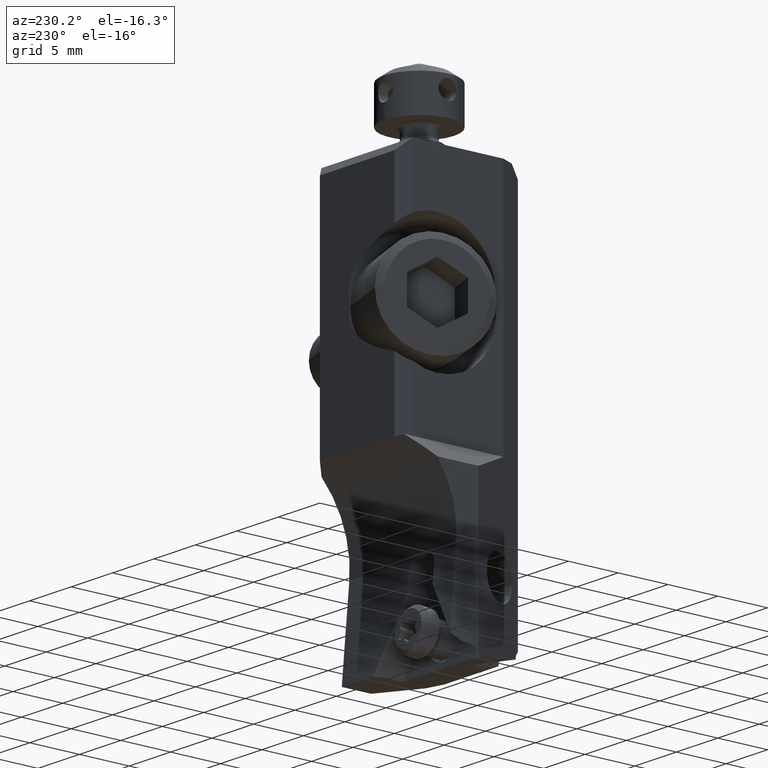
[diagram: clean part render]
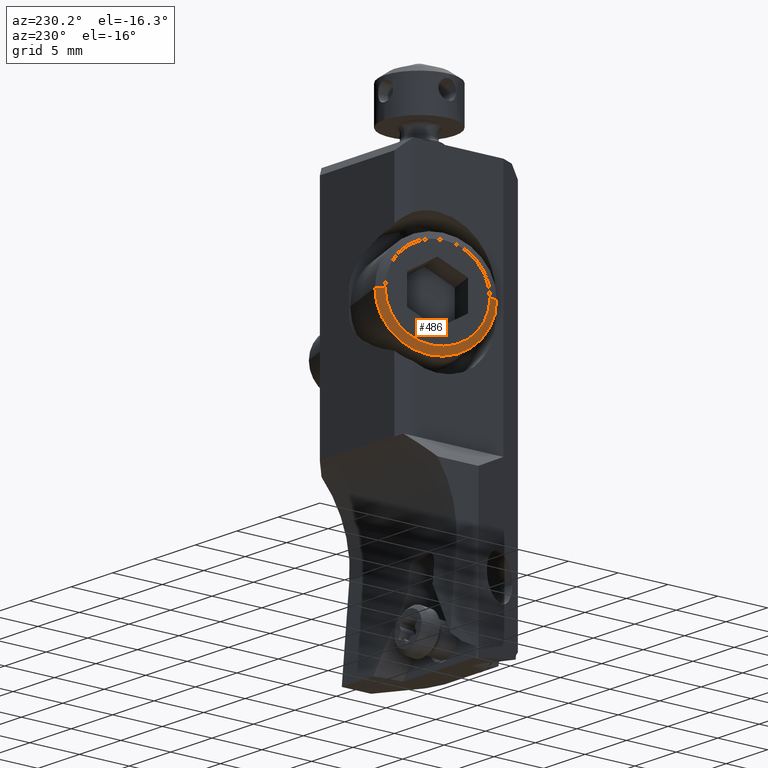
[diagram: same view with one face highlighted and labeled with its STEP entity id]
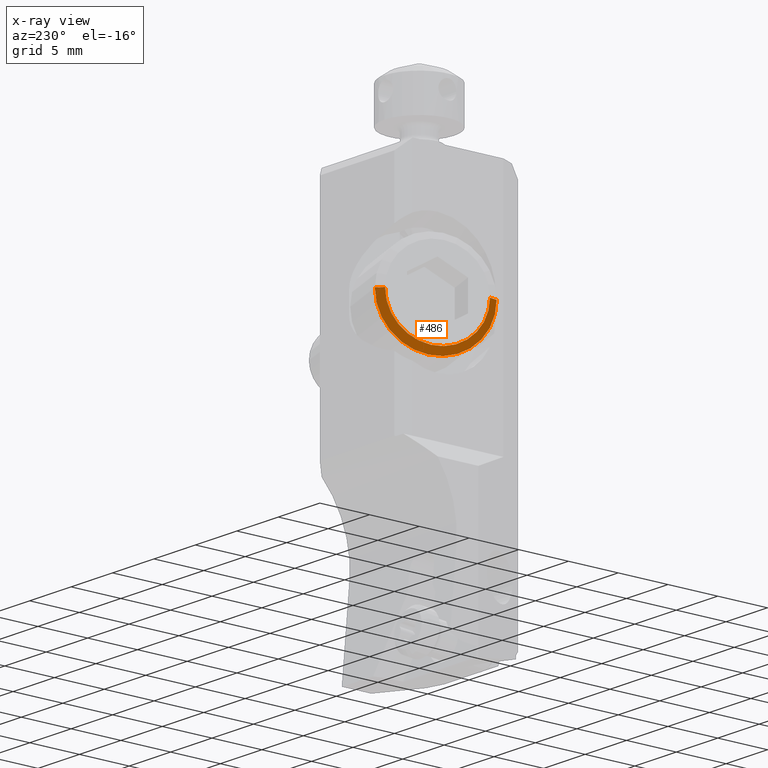
[diagram: x-ray of the same camera — body ghosted, the highlighted face saturated]
A machine part, auxiliary view. The second image highlights one B-rep face of the part: STEP entity #486.
The next image is the same camera in x-ray: the body ghosted, the highlighted face saturated — about 0% of this face is hidden behind the body in this view.
In plain terms, the highlighted conical surface has half-angle 60 deg.
Its self-contained STEP definition (entity closure, byte-faithful):
#91=CONICAL_SURFACE('',#2990,4.653589838489,59.99999999999);
#349=CIRCLE('',#2983,5.000000000001);
#352=CIRCLE('',#2989,4.307179676975);
#486=ADVANCED_FACE('',(#668),#91,.T.);
#668=FACE_OUTER_BOUND('',#819,.T.);
#819=EDGE_LOOP('',(#1566,#1567,#1568,#1569));
#1566=ORIENTED_EDGE('',*,*,#2206,.F.);
#1567=ORIENTED_EDGE('',*,*,#2210,.F.);
#1568=ORIENTED_EDGE('',*,*,#2212,.T.);
#1569=ORIENTED_EDGE('',*,*,#2211,.F.);
#1836=VERTEX_POINT('',#5347);
#1837=VERTEX_POINT('',#5349);
#1838=VERTEX_POINT('',#5355);
#1839=VERTEX_POINT('',#5356);
#2206=EDGE_CURVE('',#1836,#1837,#349,.T.);
#2210=EDGE_CURVE('',#1839,#1836,#2390,.T.);
#2211=EDGE_CURVE('',#1837,#1838,#2391,.T.);
#2212=EDGE_CURVE('',#1839,#1838,#352,.T.);
#2390=LINE('',#5357,#2569);
#2391=LINE('',#5358,#2570);
#2569=VECTOR('',#3772,1.);
#2570=VECTOR('',#3773,1.);
#2983=AXIS2_PLACEMENT_3D('',#5348,#3761,#3762);
#2989=AXIS2_PLACEMENT_3D('',#5360,#3776,#3777);
#2990=AXIS2_PLACEMENT_3D('',#5361,#3778,#3779);
#3761=DIRECTION('',(0.939692620786298,-0.342020143324599,0.));
#3762=DIRECTION('',(-0.342020143324599,-0.939692620786298,0.));
#3772=DIRECTION('',(0.173648177668391,-0.984807753011951,0.));
#3773=DIRECTION('',(-0.766044443120924,-0.64278760968422,0.));
#3776=DIRECTION('',(0.939692620786298,-0.342020143324599,0.));
#3777=DIRECTION('',(-0.342020143324599,-0.939692620786298,0.));
#3778=DIRECTION('',(0.939692620786298,-0.342020143324599,0.));
#3779=DIRECTION('',(0.342020143324599,0.939692620786298,0.));
#5347=CARTESIAN_POINT('',(-12.33422366831,4.168401415671,-12.));
#5348=CARTESIAN_POINT('',(-10.62412295169,8.866864519602,-12.));
#5349=CARTESIAN_POINT('',(-8.914022235062,13.56532762353,-12.));
#5355=CARTESIAN_POINT('',(-9.526857789557,13.05109753578,-12.));
#5356=CARTESIAN_POINT('',(-12.47314221045,4.956247618079,-12.));
#5357=CARTESIAN_POINT('',(-12.47314221045,4.956247618079,-12.));
#5358=CARTESIAN_POINT('',(-8.914022235062,13.56532762353,-12.));
#5360=CARTESIAN_POINT('',(-11.,9.003672576932,-12.));
#5361=CARTESIAN_POINT('',(-10.81206147585,8.935268548267,-12.));